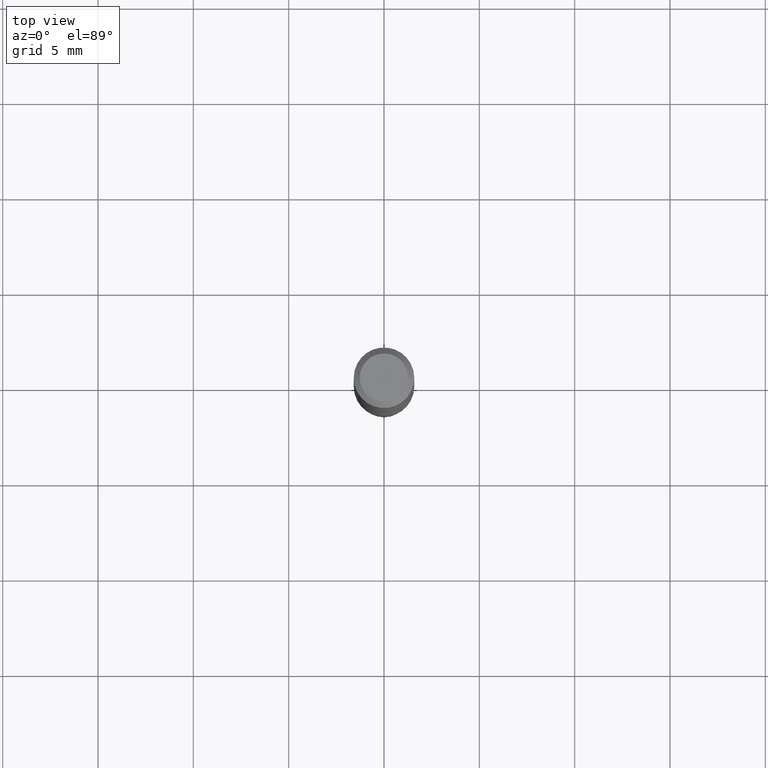
[diagram: clean part render]
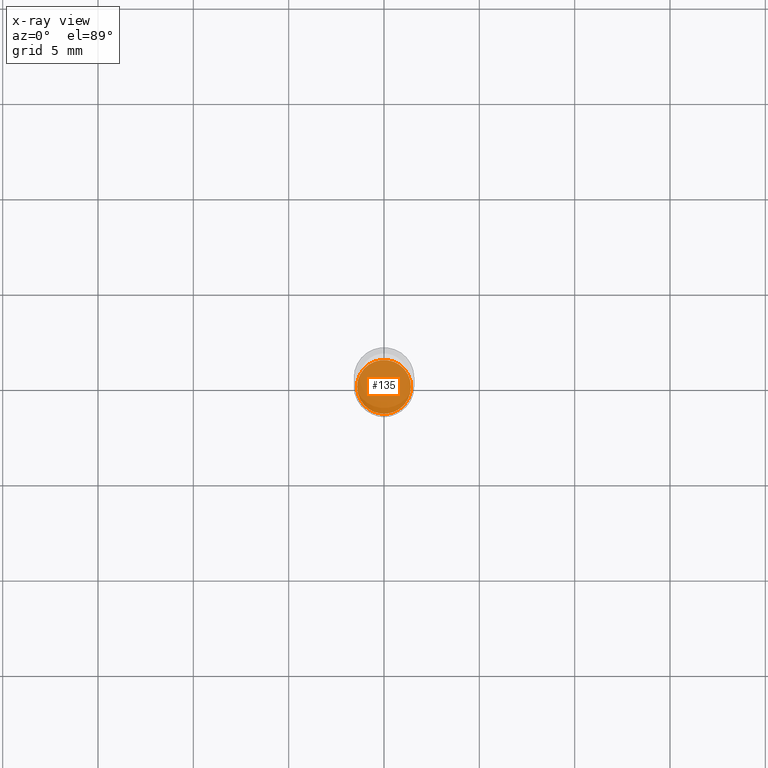
[diagram: x-ray — body ghosted, one internal face saturated and labeled with its STEP entity id]
A machine part, top view, then the same camera in x-ray: the body is ghosted and one INTERNAL B-rep face — a face not visible from any outside direction — is saturated and labeled: STEP entity #135.
In plain terms, the highlighted planar face has unit normal (-0, 0, 1).
Its self-contained STEP definition (entity closure, byte-faithful):
#21 = DIRECTION ( 'NONE',  ( 1.000000000000000000, -6.982962677686266711E-15, 0.000000000000000000 ) ) ;
#65 = DIRECTION ( 'NONE',  ( 1.000000000000000000, -6.982962677686265922E-15, 4.876176775795935793E-29 ) ) ;
#75 = ORIENTED_EDGE ( 'NONE', *, *, #287, .F. ) ;
#118 = EDGE_LOOP ( 'NONE', ( #449, #75 ) ) ;
#135 = ADVANCED_FACE ( 'NONE', ( #476 ), #366, .F. ) ;
#137 = DIRECTION ( 'NONE',  ( -2.438088387897960049E-29, 3.491481338843145188E-15, 1.000000000000000000 ) ) ;
#167 = VERTEX_POINT ( 'NONE', #372 ) ;
#169 = CIRCLE ( 'NONE', #257, 0.05559999999999999665 ) ;
#197 = AXIS2_PLACEMENT_3D ( 'NONE', #344, #442, #410 ) ;
#220 = CARTESIAN_POINT ( 'NONE',  ( 2.690015686803650369E-29, -3.840629472727460101E-15, -1.100000000000000089 ) ) ;
#228 = CARTESIAN_POINT ( 'NONE',  ( -0.05559999999999999665, -3.442918484470733319E-15, -1.100000000000000089 ) ) ;
#252 = EDGE_CURVE ( 'NONE', #167, #266, #259, .T. ) ;
#257 = AXIS2_PLACEMENT_3D ( 'NONE', #300, #471, #21 ) ;
#259 = CIRCLE ( 'NONE', #197, 0.05559999999999999665 ) ;
#266 = VERTEX_POINT ( 'NONE', #228 ) ;
#287 = EDGE_CURVE ( 'NONE', #266, #167, #169, .T. ) ;
#300 = CARTESIAN_POINT ( 'NONE',  ( 2.690015686803650369E-29, -3.840629472727460101E-15, -1.100000000000000089 ) ) ;
#344 = CARTESIAN_POINT ( 'NONE',  ( 2.690015686803650369E-29, -3.840629472727460101E-15, -1.100000000000000089 ) ) ;
#366 = PLANE ( 'NONE',  #474 ) ;
#372 = CARTESIAN_POINT ( 'NONE',  ( 0.05559999999999999665, -4.228882197606816695E-15, -1.100000000000000089 ) ) ;
#410 = DIRECTION ( 'NONE',  ( 1.000000000000000000, -6.982962677686266711E-15, 0.000000000000000000 ) ) ;
#442 = DIRECTION ( 'NONE',  ( -2.445468806185136597E-29, 3.491481338843145583E-15, 1.000000000000000000 ) ) ;
#449 = ORIENTED_EDGE ( 'NONE', *, *, #252, .F. ) ;
#471 = DIRECTION ( 'NONE',  ( -2.445468806185136597E-29, 3.491481338843145583E-15, 1.000000000000000000 ) ) ;
#474 = AXIS2_PLACEMENT_3D ( 'NONE', #220, #137, #65 ) ;
#476 = FACE_OUTER_BOUND ( 'NONE', #118, .T. ) ;